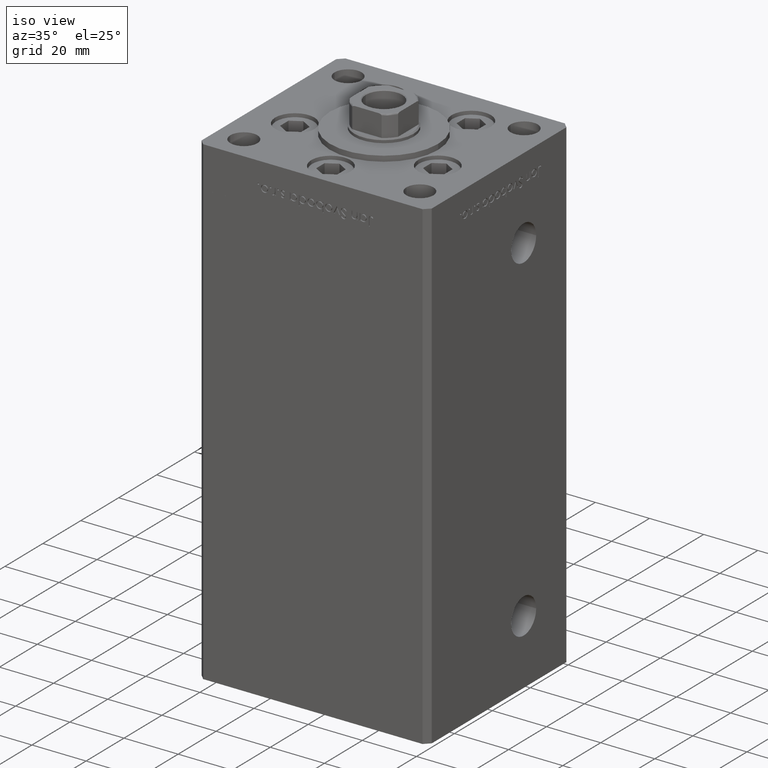
[diagram: clean part render]
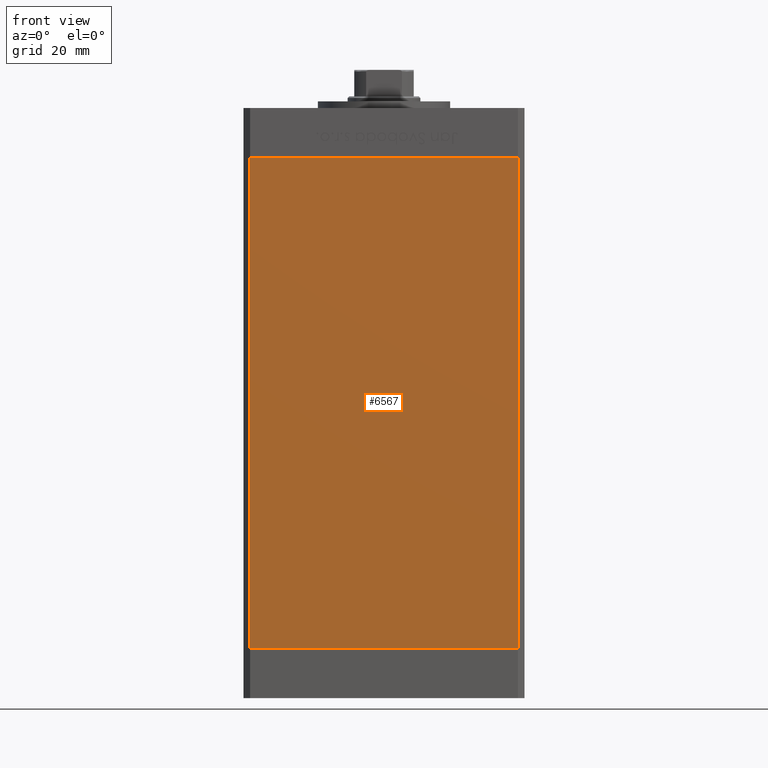
[diagram: tour spotlight — one face highlighted and labeled with its STEP entity id]
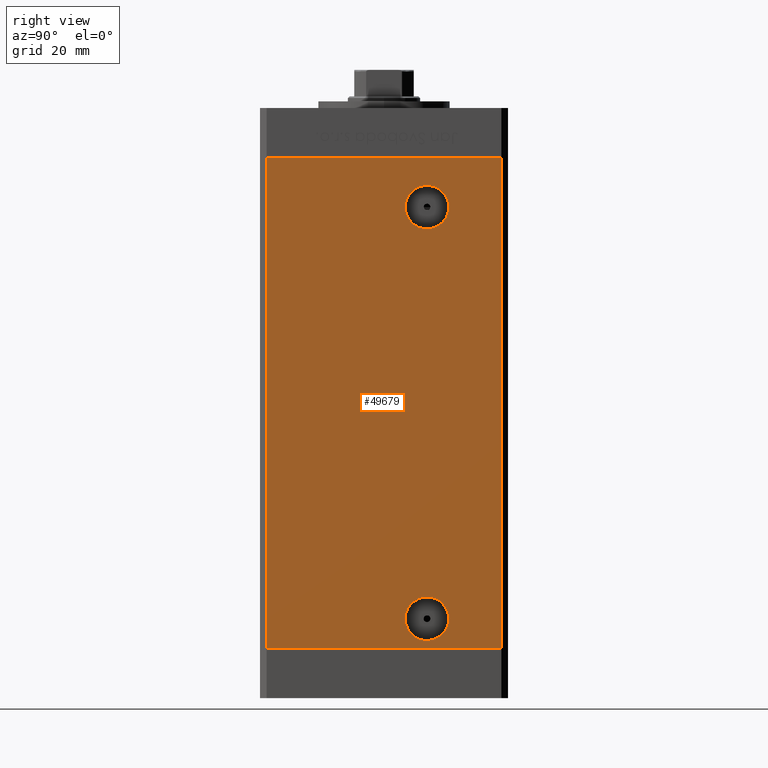
[diagram: tour spotlight — one face highlighted and labeled with its STEP entity id]
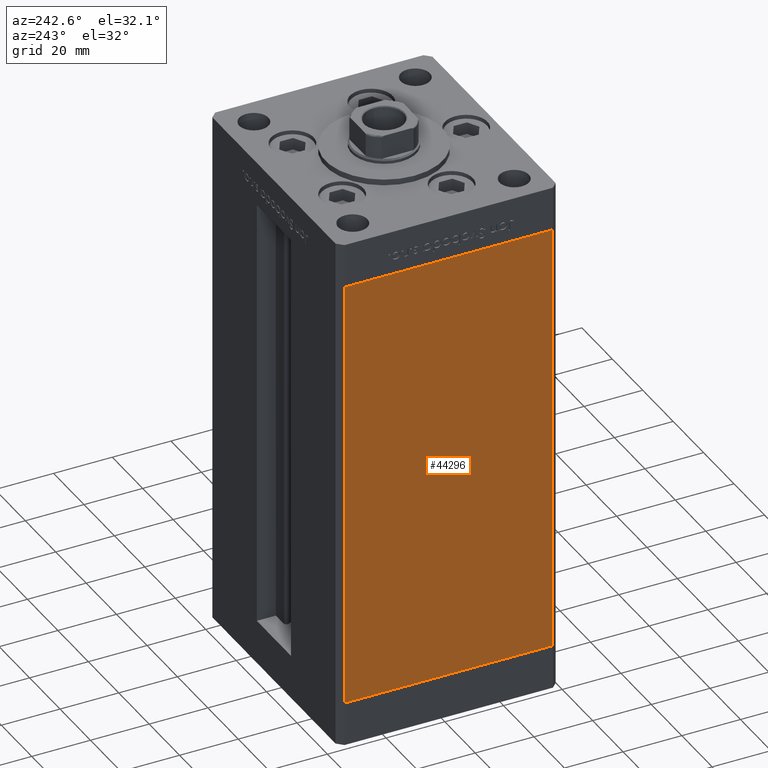
[diagram: tour spotlight — one face highlighted and labeled with its STEP entity id]
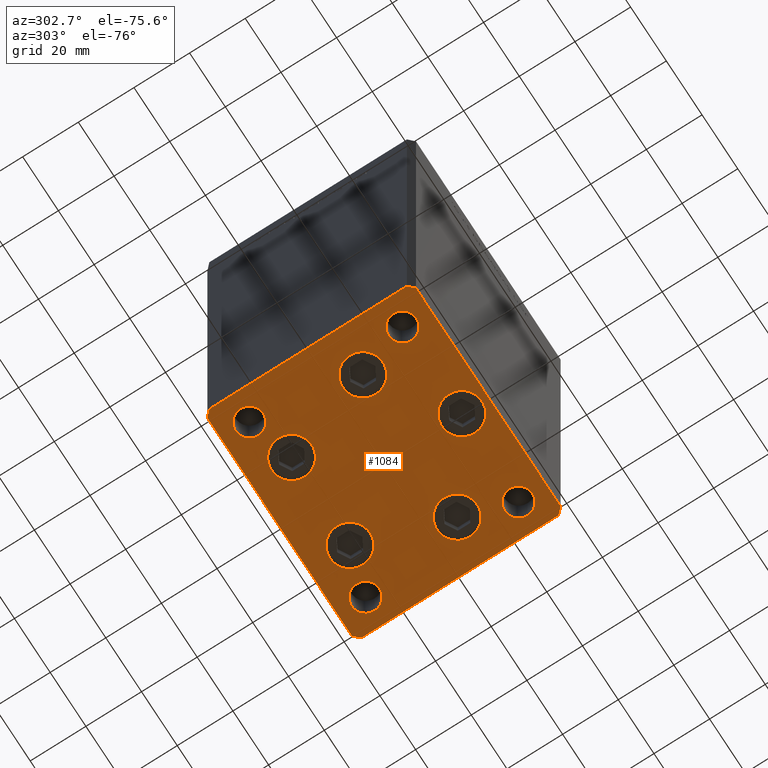
[diagram: tour spotlight — one face highlighted and labeled with its STEP entity id]
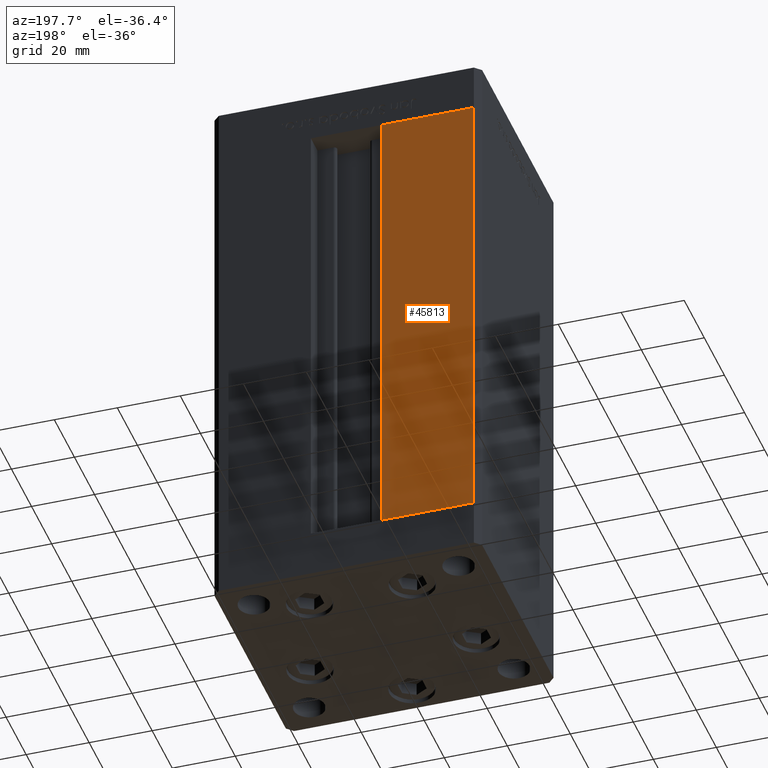
[diagram: tour spotlight — one face highlighted and labeled with its STEP entity id]
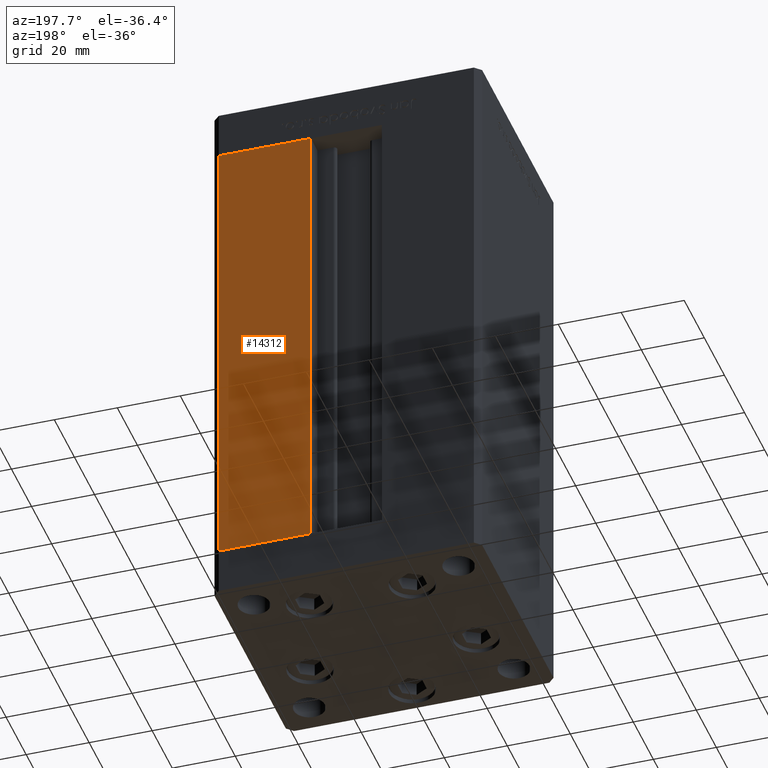
[diagram: tour spotlight — one face highlighted and labeled with its STEP entity id]
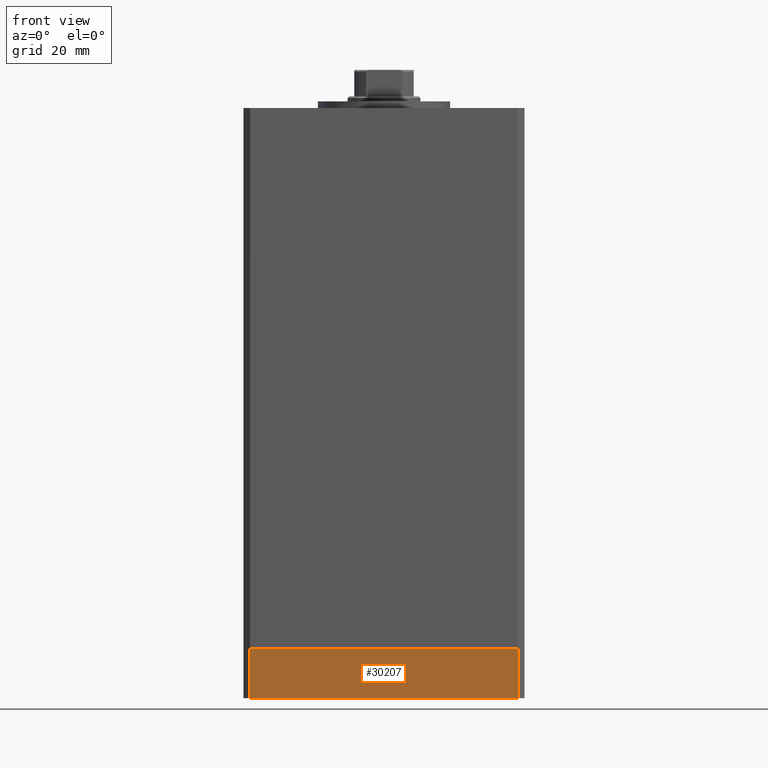
[diagram: tour spotlight — one face highlighted and labeled with its STEP entity id]
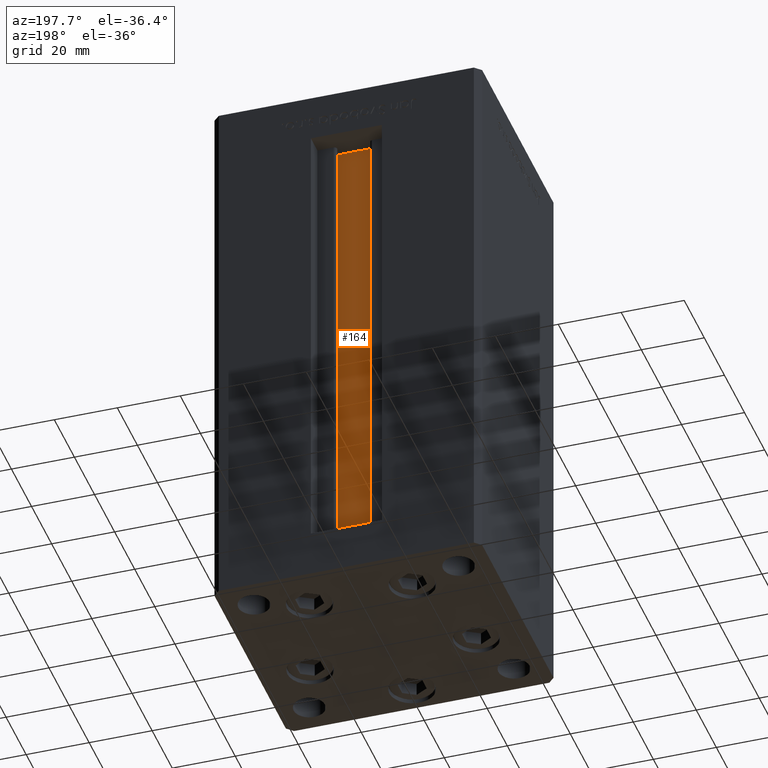
[diagram: tour spotlight — one face highlighted and labeled with its STEP entity id]
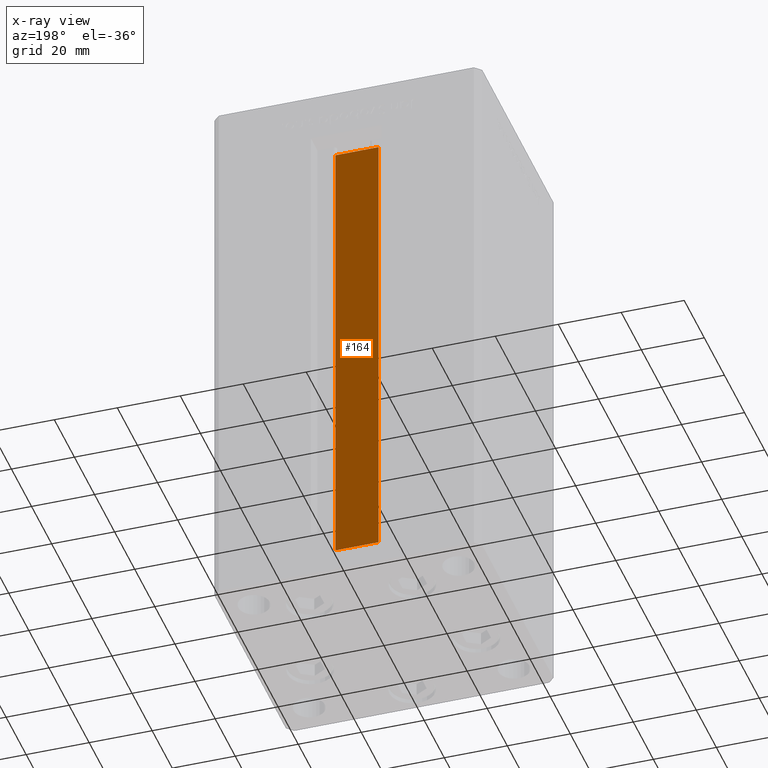
[diagram: x-ray of the same camera — body ghosted, this tour face saturated]
A machine part: a face-by-face anatomy tour. The part has 1183 B-rep faces; the first image is the clean iso view, then the 8 largest visible faces are spotlighted one at a time (largest first), each with its STEP entity span.

Face 1 — front view, entity #6567. In plain terms, the highlighted planar face has unit normal (0, 1, 0).
Definition (entity closure, byte-faithful):
#554 = FACE_OUTER_BOUND ( 'NONE', #30707, .T. ) ;
#743 = VERTEX_POINT ( 'NONE', #46597 ) ;
#2516 = LINE ( 'NONE', #32511, #34706 ) ;
#3361 = CARTESIAN_POINT ( 'NONE',  ( 40.49999999999998579, -37.50000000000000711, 0.000000000000000000 ) ) ;
#4184 = ORIENTED_EDGE ( 'NONE', *, *, #37182, .F. ) ;
#6567 = ADVANCED_FACE ( 'NONE', ( #554 ), #25093, .F. ) ;
#6984 = EDGE_CURVE ( 'NONE', #7990, #23725, #24181, .T. ) ;
#7174 = EDGE_CURVE ( 'NONE', #23725, #15042, #2516, .T. ) ;
#7990 = VERTEX_POINT ( 'NONE', #18030 ) ;
#15042 = VERTEX_POINT ( 'NONE', #3361 ) ;
#16134 = DIRECTION ( 'NONE',  ( 1.000000000000000000, 0.000000000000000000, 0.000000000000000000 ) ) ;
#17320 = ORIENTED_EDGE ( 'NONE', *, *, #7174, .T. ) ;
#18030 = CARTESIAN_POINT ( 'NONE',  ( -40.49999999999998579, -37.50000000000000711, 148.5000000000000000 ) ) ;
#19814 = DIRECTION ( 'NONE',  ( -0.000000000000000000, -0.000000000000000000, -1.000000000000000000 ) ) ;
#20321 = LINE ( 'NONE', #44094, #40150 ) ;
#20878 = DIRECTION ( 'NONE',  ( 0.000000000000000000, -0.000000000000000000, 1.000000000000000000 ) ) ;
#23725 = VERTEX_POINT ( 'NONE', #32270 ) ;
#24181 = LINE ( 'NONE', #36311, #43982 ) ;
#24422 = CARTESIAN_POINT ( 'NONE',  ( -40.49999999999998579, -37.50000000000000711, 148.5000000000000000 ) ) ;
#25093 = PLANE ( 'NONE',  #39806 ) ;
#30707 = EDGE_LOOP ( 'NONE', ( #17320, #4184, #37004, #35438 ) ) ;
#32270 = CARTESIAN_POINT ( 'NONE',  ( -40.49999999999998579, -37.50000000000000711, 0.000000000000000000 ) ) ;
#32511 = CARTESIAN_POINT ( 'NONE',  ( -40.49999999999998579, -37.50000000000000711, 0.000000000000000000 ) ) ;
#34706 = VECTOR ( 'NONE', #16134, 1000.000000000000000 ) ;
#35438 = ORIENTED_EDGE ( 'NONE', *, *, #6984, .T. ) ;
#36311 = CARTESIAN_POINT ( 'NONE',  ( -40.49999999999998579, -37.50000000000000711, 148.5000000000000000 ) ) ;
#37004 = ORIENTED_EDGE ( 'NONE', *, *, #43512, .F. ) ;
#37182 = EDGE_CURVE ( 'NONE', #743, #15042, #20321, .T. ) ;
#39806 = AXIS2_PLACEMENT_3D ( 'NONE', #41206, #45163, #20878 ) ;
#40150 = VECTOR ( 'NONE', #19814, 1000.000000000000000 ) ;
#40534 = DIRECTION ( 'NONE',  ( 1.000000000000000000, 0.000000000000000000, 0.000000000000000000 ) ) ;
#41206 = CARTESIAN_POINT ( 'NONE',  ( -40.49999999999998579, -37.50000000000000711, 148.5000000000000000 ) ) ;
#41986 = VECTOR ( 'NONE', #40534, 1000.000000000000000 ) ;
#43512 = EDGE_CURVE ( 'NONE', #7990, #743, #47921, .T. ) ;
#43982 = VECTOR ( 'NONE', #44763, 1000.000000000000000 ) ;
#44094 = CARTESIAN_POINT ( 'NONE',  ( 40.49999999999998579, -37.50000000000000711, 148.5000000000000000 ) ) ;
#44763 = DIRECTION ( 'NONE',  ( -0.000000000000000000, -0.000000000000000000, -1.000000000000000000 ) ) ;
#45163 = DIRECTION ( 'NONE',  ( 0.000000000000000000, 1.000000000000000000, 0.000000000000000000 ) ) ;
#46597 = CARTESIAN_POINT ( 'NONE',  ( 40.49999999999998579, -37.50000000000000711, 148.5000000000000000 ) ) ;
#47921 = LINE ( 'NONE', #24422, #41986 ) ;

Face 2 — right view, entity #49679. In plain terms, the highlighted planar face has unit normal (1, -0, 0).
Definition (entity closure, byte-faithful):
#598 = DIRECTION ( 'NONE',  ( 0.000000000000000000, 1.000000000000000000, 0.000000000000000000 ) ) ;
#983 = VERTEX_POINT ( 'NONE', #43689 ) ;
#1673 = DIRECTION ( 'NONE',  ( 1.000000000000000000, -2.931927001650941360E-16, 0.000000000000000000 ) ) ;
#2732 = FACE_OUTER_BOUND ( 'NONE', #41676, .T. ) ;
#2796 = LINE ( 'NONE', #22592, #17557 ) ;
#3632 = LINE ( 'NONE', #23176, #32087 ) ;
#4029 = ORIENTED_EDGE ( 'NONE', *, *, #36362, .F. ) ;
#4996 = LINE ( 'NONE', #46149, #39279 ) ;
#5351 = DIRECTION ( 'NONE',  ( -2.931927001650941360E-16, -1.000000000000000000, 0.000000000000000000 ) ) ;
#5759 = ORIENTED_EDGE ( 'NONE', *, *, #30039, .F. ) ;
#6292 = ORIENTED_EDGE ( 'NONE', *, *, #44570, .F. ) ;
#6313 = AXIS2_PLACEMENT_3D ( 'NONE', #9047, #36756, #598 ) ;
#7332 = DIRECTION ( 'NONE',  ( -0.000000000000000000, -0.000000000000000000, -1.000000000000000000 ) ) ;
#7663 = CARTESIAN_POINT ( 'NONE',  ( 42.49999999999998579, -35.50000000000000711, 0.000000000000000000 ) ) ;
#7687 = DIRECTION ( 'NONE',  ( 0.000000000000000000, 1.000000000000000000, 0.000000000000000000 ) ) ;
#8918 = VERTEX_POINT ( 'NONE', #48232 ) ;
#9047 = CARTESIAN_POINT ( 'NONE',  ( 42.49999999999999289, 13.00000000000000000, 133.5000000000000000 ) ) ;
#11861 = ORIENTED_EDGE ( 'NONE', *, *, #34322, .F. ) ;
#12040 = DIRECTION ( 'NONE',  ( 0.000000000000000000, 1.000000000000000000, 0.000000000000000000 ) ) ;
#12343 = CARTESIAN_POINT ( 'NONE',  ( 42.50000000000000711, 35.50000000000001421, 0.000000000000000000 ) ) ;
#13797 = AXIS2_PLACEMENT_3D ( 'NONE', #47160, #43227, #12040 ) ;
#13914 = CIRCLE ( 'NONE', #13797, 6.579999999999997407 ) ;
#14742 = CIRCLE ( 'NONE', #15574, 6.579999999999997407 ) ;
#15231 = CIRCLE ( 'NONE', #37155, 6.580000000000014282 ) ;
#15513 = VERTEX_POINT ( 'NONE', #37819 ) ;
#15574 = AXIS2_PLACEMENT_3D ( 'NONE', #23015, #24555, #7687 ) ;
#16572 = CARTESIAN_POINT ( 'NONE',  ( 42.49999999999999289, 6.420000000000000817, 9.000000000000007105 ) ) ;
#17343 = EDGE_CURVE ( 'NONE', #8918, #983, #37019, .T. ) ;
#17557 = VECTOR ( 'NONE', #31291, 1000.000000000000000 ) ;
#17583 = EDGE_CURVE ( 'NONE', #15513, #40117, #15231, .T. ) ;
#17999 = ORIENTED_EDGE ( 'NONE', *, *, #17343, .T. ) ;
#18682 = DIRECTION ( 'NONE',  ( -2.931927001650941360E-16, -1.000000000000000000, 0.000000000000000000 ) ) ;
#19236 = CARTESIAN_POINT ( 'NONE',  ( 42.49999999999999289, 19.57999999999999829, 9.000000000000007105 ) ) ;
#20807 = EDGE_LOOP ( 'NONE', ( #5759, #11861 ) ) ;
#22592 = CARTESIAN_POINT ( 'NONE',  ( 42.50000000000000711, 35.50000000000001421, 148.5000000000000000 ) ) ;
#23015 = CARTESIAN_POINT ( 'NONE',  ( 42.49999999999999289, 13.00000000000000000, 9.000000000000007105 ) ) ;
#23139 = CARTESIAN_POINT ( 'NONE',  ( 42.49999999999999289, 6.419999999999983942, 133.5000000000000000 ) ) ;
#23176 = CARTESIAN_POINT ( 'NONE',  ( 42.49999999999998579, -35.50000000000000711, 148.5000000000000000 ) ) ;
#24047 = CARTESIAN_POINT ( 'NONE',  ( 42.49999999999999289, 13.00000000000000000, 133.5000000000000000 ) ) ;
#24555 = DIRECTION ( 'NONE',  ( 1.000000000000000000, -2.275047181608927644E-16, 0.000000000000000000 ) ) ;
#28224 = CIRCLE ( 'NONE', #6313, 6.580000000000014282 ) ;
#30039 = EDGE_CURVE ( 'NONE', #33058, #40641, #13914, .T. ) ;
#30439 = DIRECTION ( 'NONE',  ( 2.931927001650941360E-16, 1.000000000000000000, 0.000000000000000000 ) ) ;
#31291 = DIRECTION ( 'NONE',  ( -0.000000000000000000, -0.000000000000000000, -1.000000000000000000 ) ) ;
#31967 = DIRECTION ( 'NONE',  ( 1.000000000000000000, -2.275047181608927644E-16, 0.000000000000000000 ) ) ;
#32087 = VECTOR ( 'NONE', #7332, 1000.000000000000000 ) ;
#32943 = VECTOR ( 'NONE', #5351, 1000.000000000000000 ) ;
#33058 = VERTEX_POINT ( 'NONE', #19236 ) ;
#33066 = AXIS2_PLACEMENT_3D ( 'NONE', #38364, #1673, #30439 ) ;
#33420 = EDGE_CURVE ( 'NONE', #40117, #15513, #28224, .T. ) ;
#33586 = CARTESIAN_POINT ( 'NONE',  ( 42.50000000000000711, 35.50000000000001421, 148.5000000000000000 ) ) ;
#34005 = ORIENTED_EDGE ( 'NONE', *, *, #17583, .F. ) ;
#34322 = EDGE_CURVE ( 'NONE', #40641, #33058, #14742, .T. ) ;
#35058 = ORIENTED_EDGE ( 'NONE', *, *, #47663, .T. ) ;
#35146 = DIRECTION ( 'NONE',  ( 0.000000000000000000, 1.000000000000000000, 0.000000000000000000 ) ) ;
#36299 = ORIENTED_EDGE ( 'NONE', *, *, #33420, .F. ) ;
#36362 = EDGE_CURVE ( 'NONE', #38192, #45134, #4996, .T. ) ;
#36756 = DIRECTION ( 'NONE',  ( 1.000000000000000000, -2.275047181608927644E-16, 0.000000000000000000 ) ) ;
#37019 = LINE ( 'NONE', #33586, #32943 ) ;
#37155 = AXIS2_PLACEMENT_3D ( 'NONE', #24047, #31967, #35146 ) ;
#37819 = CARTESIAN_POINT ( 'NONE',  ( 42.49999999999999289, 19.58000000000001251, 133.5000000000000000 ) ) ;
#38192 = VERTEX_POINT ( 'NONE', #12343 ) ;
#38364 = CARTESIAN_POINT ( 'NONE',  ( 42.50000000000000711, 35.50000000000001421, 148.5000000000000000 ) ) ;
#39279 = VECTOR ( 'NONE', #18682, 1000.000000000000000 ) ;
#40117 = VERTEX_POINT ( 'NONE', #23139 ) ;
#40641 = VERTEX_POINT ( 'NONE', #16572 ) ;
#41676 = EDGE_LOOP ( 'NONE', ( #4029, #6292, #17999, #35058 ) ) ;
#41811 = FACE_BOUND ( 'NONE', #42328, .T. ) ;
#42328 = EDGE_LOOP ( 'NONE', ( #34005, #36299 ) ) ;
#43227 = DIRECTION ( 'NONE',  ( 1.000000000000000000, -2.275047181608927644E-16, 0.000000000000000000 ) ) ;
#43689 = CARTESIAN_POINT ( 'NONE',  ( 42.49999999999998579, -35.50000000000000711, 148.5000000000000000 ) ) ;
#44570 = EDGE_CURVE ( 'NONE', #8918, #38192, #2796, .T. ) ;
#45134 = VERTEX_POINT ( 'NONE', #7663 ) ;
#46149 = CARTESIAN_POINT ( 'NONE',  ( 42.50000000000000711, 35.50000000000001421, 0.000000000000000000 ) ) ;
#47160 = CARTESIAN_POINT ( 'NONE',  ( 42.49999999999999289, 13.00000000000000000, 9.000000000000007105 ) ) ;
#47663 = EDGE_CURVE ( 'NONE', #983, #45134, #3632, .T. ) ;
#48232 = CARTESIAN_POINT ( 'NONE',  ( 42.50000000000000711, 35.50000000000001421, 148.5000000000000000 ) ) ;
#49679 = ADVANCED_FACE ( 'NONE', ( #41811, #49956, #2732 ), #50736, .T. ) ;
#49956 = FACE_BOUND ( 'NONE', #20807, .T. ) ;
#50736 = PLANE ( 'NONE',  #33066 ) ;

Face 3 — auxiliary view, entity #44296. In plain terms, the highlighted planar face has unit normal (1, 0, 0).
Definition (entity closure, byte-faithful):
#1622 = ORIENTED_EDGE ( 'NONE', *, *, #43456, .F. ) ;
#3709 = CARTESIAN_POINT ( 'NONE',  ( -42.50000000000000711, 35.50000000000001421, 0.000000000000000000 ) ) ;
#8279 = LINE ( 'NONE', #12488, #17983 ) ;
#8381 = LINE ( 'NONE', #36355, #50277 ) ;
#9835 = VERTEX_POINT ( 'NONE', #50909 ) ;
#10499 = EDGE_CURVE ( 'NONE', #15848, #9835, #8279, .T. ) ;
#11573 = VECTOR ( 'NONE', #44850, 1000.000000000000000 ) ;
#12488 = CARTESIAN_POINT ( 'NONE',  ( -42.50000000000000711, 35.50000000000001421, 148.5000000000000000 ) ) ;
#15848 = VERTEX_POINT ( 'NONE', #27114 ) ;
#16085 = FACE_OUTER_BOUND ( 'NONE', #29300, .T. ) ;
#16088 = LINE ( 'NONE', #3709, #11573 ) ;
#17983 = VECTOR ( 'NONE', #24374, 1000.000000000000000 ) ;
#19796 = CARTESIAN_POINT ( 'NONE',  ( -42.50000000000000711, 35.50000000000001421, 148.5000000000000000 ) ) ;
#21610 = ORIENTED_EDGE ( 'NONE', *, *, #39901, .F. ) ;
#24374 = DIRECTION ( 'NONE',  ( -0.000000000000000000, -0.000000000000000000, -1.000000000000000000 ) ) ;
#27114 = CARTESIAN_POINT ( 'NONE',  ( -42.50000000000000711, 35.50000000000001421, 148.5000000000000000 ) ) ;
#28523 = AXIS2_PLACEMENT_3D ( 'NONE', #19796, #51960, #31154 ) ;
#29300 = EDGE_LOOP ( 'NONE', ( #35799, #1622, #21610, #40551 ) ) ;
#31059 = LINE ( 'NONE', #34494, #41150 ) ;
#31154 = DIRECTION ( 'NONE',  ( -2.931927001650941360E-16, 1.000000000000000000, 0.000000000000000000 ) ) ;
#34494 = CARTESIAN_POINT ( 'NONE',  ( -42.49999999999998579, -35.50000000000000711, 148.5000000000000000 ) ) ;
#35799 = ORIENTED_EDGE ( 'NONE', *, *, #41314, .T. ) ;
#36355 = CARTESIAN_POINT ( 'NONE',  ( -42.50000000000000711, 35.50000000000001421, 148.5000000000000000 ) ) ;
#38460 = DIRECTION ( 'NONE',  ( -0.000000000000000000, -0.000000000000000000, -1.000000000000000000 ) ) ;
#39901 = EDGE_CURVE ( 'NONE', #15848, #46919, #8381, .T. ) ;
#40551 = ORIENTED_EDGE ( 'NONE', *, *, #10499, .T. ) ;
#41150 = VECTOR ( 'NONE', #38460, 1000.000000000000000 ) ;
#41280 = CARTESIAN_POINT ( 'NONE',  ( -42.49999999999998579, -35.50000000000000711, 148.5000000000000000 ) ) ;
#41314 = EDGE_CURVE ( 'NONE', #9835, #41836, #16088, .T. ) ;
#41836 = VERTEX_POINT ( 'NONE', #43895 ) ;
#43456 = EDGE_CURVE ( 'NONE', #46919, #41836, #31059, .T. ) ;
#43895 = CARTESIAN_POINT ( 'NONE',  ( -42.49999999999998579, -35.50000000000000711, 0.000000000000000000 ) ) ;
#44296 = ADVANCED_FACE ( 'NONE', ( #16085 ), #51190, .F. ) ;
#44802 = DIRECTION ( 'NONE',  ( 2.931927001650941360E-16, -1.000000000000000000, 0.000000000000000000 ) ) ;
#44850 = DIRECTION ( 'NONE',  ( 2.931927001650941360E-16, -1.000000000000000000, 0.000000000000000000 ) ) ;
#46919 = VERTEX_POINT ( 'NONE', #41280 ) ;
#50277 = VECTOR ( 'NONE', #44802, 1000.000000000000000 ) ;
#50909 = CARTESIAN_POINT ( 'NONE',  ( -42.50000000000000711, 35.50000000000001421, 0.000000000000000000 ) ) ;
#51190 = PLANE ( 'NONE',  #28523 ) ;
#51960 = DIRECTION ( 'NONE',  ( 1.000000000000000000, 2.931927001650941360E-16, -0.000000000000000000 ) ) ;

Face 4 — auxiliary view, entity #1084. In plain terms, the highlighted planar face has unit normal (0, 0, -1).
Definition (entity closure, byte-faithful):
#422 = CARTESIAN_POINT ( 'NONE',  ( 16.32291334290542295, 22.75000000000000000, 0.000000000000000000 ) ) ;
#640 = FACE_BOUND ( 'NONE', #30482, .T. ) ;
#667 = EDGE_CURVE ( 'NONE', #27866, #4997, #31214, .T. ) ;
#869 = EDGE_LOOP ( 'NONE', ( #9426, #15675 ) ) ;
#899 = FACE_BOUND ( 'NONE', #21798, .T. ) ;
#912 = ORIENTED_EDGE ( 'NONE', *, *, #21513, .T. ) ;
#969 = CARTESIAN_POINT ( 'NONE',  ( 42.49999999999992895, 35.50000000000000000, 0.000000000000000000 ) ) ;
#1084 = ADVANCED_FACE ( 'NONE', ( #32585, #48659, #899, #44718, #12772, #49190, #640, #43940, #20172, #36021 ), #48141, .T. ) ;
#1175 = VECTOR ( 'NONE', #41991, 1000.000000000000000 ) ;
#1435 = CIRCLE ( 'NONE', #8181, 7.249999999999999112 ) ;
#1686 = ORIENTED_EDGE ( 'NONE', *, *, #4479, .T. ) ;
#2723 = CARTESIAN_POINT ( 'NONE',  ( -9.072913342905431833, 22.74999999999999645, 0.000000000000000000 ) ) ;
#2774 = AXIS2_PLACEMENT_3D ( 'NONE', #17477, #4826, #48873 ) ;
#2835 = VERTEX_POINT ( 'NONE', #33451 ) ;
#2852 = AXIS2_PLACEMENT_3D ( 'NONE', #422, #48450, #29191 ) ;
#3227 = VECTOR ( 'NONE', #26487, 1000.000000000000000 ) ;
#3323 = ORIENTED_EDGE ( 'NONE', *, *, #5021, .F. ) ;
#3440 = CARTESIAN_POINT ( 'NONE',  ( -7.249999999999997335, -28.00000000000000000, 0.000000000000000000 ) ) ;
#3462 = CARTESIAN_POINT ( 'NONE',  ( 40.49999999999991473, 37.50000000000000711, 0.000000000000000000 ) ) ;
#3975 = ORIENTED_EDGE ( 'NONE', *, *, #44510, .T. ) ;
#4261 = CARTESIAN_POINT ( 'NONE',  ( -37.50000000000000711, -27.49999999999999645, 0.000000000000000000 ) ) ;
#4369 = ORIENTED_EDGE ( 'NONE', *, *, #50809, .F. ) ;
#4384 = VECTOR ( 'NONE', #26382, 1000.000000000000000 ) ;
#4479 = EDGE_CURVE ( 'NONE', #14300, #39158, #17791, .T. ) ;
#4617 = ORIENTED_EDGE ( 'NONE', *, *, #23361, .F. ) ;
#4826 = DIRECTION ( 'NONE',  ( -0.000000000000000000, 0.000000000000000000, 1.000000000000000000 ) ) ;
#4980 = DIRECTION ( 'NONE',  ( 0.000000000000000000, -0.000000000000000000, -1.000000000000000000 ) ) ;
#4997 = VERTEX_POINT ( 'NONE', #19036 ) ;
#5021 = EDGE_CURVE ( 'NONE', #40583, #38889, #30491, .T. ) ;
#5187 = CARTESIAN_POINT ( 'NONE',  ( 42.50000000000000711, -35.50000000000000000, 0.000000000000000000 ) ) ;
#6279 = CARTESIAN_POINT ( 'NONE',  ( 42.49999999999992895, 35.50000000000000000, 0.000000000000000000 ) ) ;
#6302 = ORIENTED_EDGE ( 'NONE', *, *, #32832, .T. ) ;
#6393 = AXIS2_PLACEMENT_3D ( 'NONE', #22213, #50954, #31173 ) ;
#6428 = VERTEX_POINT ( 'NONE', #30683 ) ;
#6765 = AXIS2_PLACEMENT_3D ( 'NONE', #51891, #14983, #47166 ) ;
#6800 = CARTESIAN_POINT ( 'NONE',  ( -27.50000000000000000, -27.49999999999999645, 0.000000000000000000 ) ) ;
#6899 = LINE ( 'NONE', #3462, #21381 ) ;
#7517 = EDGE_CURVE ( 'NONE', #30017, #21858, #50743, .T. ) ;
#7713 = DIRECTION ( 'NONE',  ( 1.000000000000000000, 0.000000000000000000, 0.000000000000000000 ) ) ;
#7748 = AXIS2_PLACEMENT_3D ( 'NONE', #12547, #24961, #40815 ) ;
#7860 = ORIENTED_EDGE ( 'NONE', *, *, #11810, .T. ) ;
#7896 = AXIS2_PLACEMENT_3D ( 'NONE', #29959, #25466, #46309 ) ;
#8181 = AXIS2_PLACEMENT_3D ( 'NONE', #37771, #49381, #49882 ) ;
#8849 = CARTESIAN_POINT ( 'NONE',  ( -26.39865316429776954, -9.333333333333337478, 0.000000000000000000 ) ) ;
#9334 = CIRCLE ( 'NONE', #30393, 7.249999999999999112 ) ;
#9426 = ORIENTED_EDGE ( 'NONE', *, *, #7517, .T. ) ;
#9616 = ORIENTED_EDGE ( 'NONE', *, *, #28357, .F. ) ;
#9670 = EDGE_CURVE ( 'NONE', #41818, #2835, #20471, .T. ) ;
#10013 = CARTESIAN_POINT ( 'NONE',  ( 3.429011037612589276E-15, -28.00000000000000000, 0.000000000000000000 ) ) ;
#10154 = AXIS2_PLACEMENT_3D ( 'NONE', #16738, #32843, #36269 ) ;
#10199 = ORIENTED_EDGE ( 'NONE', *, *, #15631, .T. ) ;
#10206 = EDGE_CURVE ( 'NONE', #27807, #48993, #13759, .T. ) ;
#10346 = CARTESIAN_POINT ( 'NONE',  ( -32.50000000000000000, 27.50000000000000355, 0.000000000000000000 ) ) ;
#10494 = DIRECTION ( 'NONE',  ( -0.7071067811865474617, 0.7071067811865474617, 0.000000000000000000 ) ) ;
#10607 = CIRCLE ( 'NONE', #6393, 4.999999999999997335 ) ;
#10989 = CARTESIAN_POINT ( 'NONE',  ( 32.50000000000000000, -27.49999999999999645, 0.000000000000000000 ) ) ;
#11140 = VERTEX_POINT ( 'NONE', #45802 ) ;
#11180 = CARTESIAN_POINT ( 'NONE',  ( -33.64865316429776954, -9.333333333333337478, 0.000000000000000000 ) ) ;
#11633 = CARTESIAN_POINT ( 'NONE',  ( 27.50000000000000355, 27.49999999999999645, 0.000000000000000000 ) ) ;
#11736 = DIRECTION ( 'NONE',  ( 1.000000000000000000, 0.000000000000000000, 0.000000000000000000 ) ) ;
#11810 = EDGE_CURVE ( 'NONE', #47582, #49774, #42522, .T. ) ;
#11914 = VECTOR ( 'NONE', #14435, 1000.000000000000114 ) ;
#12058 = AXIS2_PLACEMENT_3D ( 'NONE', #35773, #34986, #11736 ) ;
#12547 = CARTESIAN_POINT ( 'NONE',  ( 26.39865316429776954, -9.333333333333330373, 0.000000000000000000 ) ) ;
#12749 = CIRCLE ( 'NONE', #33852, 4.999999999999997335 ) ;
#12772 = FACE_BOUND ( 'NONE', #47308, .T. ) ;
#13086 = CARTESIAN_POINT ( 'NONE',  ( -32.50000000000000000, -27.49999999999999645, 0.000000000000000000 ) ) ;
#13432 = ORIENTED_EDGE ( 'NONE', *, *, #667, .T. ) ;
#13523 = VERTEX_POINT ( 'NONE', #41040 ) ;
#13716 = CIRCLE ( 'NONE', #2774, 5.000000000000000888 ) ;
#13759 = CIRCLE ( 'NONE', #7896, 7.249999999999999112 ) ;
#13807 = CARTESIAN_POINT ( 'NONE',  ( 37.50000000000000000, 27.49999999999999645, 0.000000000000000000 ) ) ;
#13921 = CARTESIAN_POINT ( 'NONE',  ( 40.50000000000000000, -37.50000000000000711, 0.000000000000000000 ) ) ;
#14137 = VERTEX_POINT ( 'NONE', #969 ) ;
#14151 = CARTESIAN_POINT ( 'NONE',  ( -19.14865316429777309, -9.333333333333335702, 0.000000000000000000 ) ) ;
#14300 = VERTEX_POINT ( 'NONE', #14151 ) ;
#14435 = DIRECTION ( 'NONE',  ( 0.7071067811865474617, 0.7071067811865474617, 0.000000000000000000 ) ) ;
#14592 = CARTESIAN_POINT ( 'NONE',  ( -40.49999999999999289, -37.50000000000002132, 0.000000000000000000 ) ) ;
#14759 = ORIENTED_EDGE ( 'NONE', *, *, #10206, .T. ) ;
#14983 = DIRECTION ( 'NONE',  ( 0.000000000000000000, -0.000000000000000000, -1.000000000000000000 ) ) ;
#15239 = DIRECTION ( 'NONE',  ( 0.000000000000000000, -0.000000000000000000, -1.000000000000000000 ) ) ;
#15631 = EDGE_CURVE ( 'NONE', #39158, #14300, #38831, .T. ) ;
#15675 = ORIENTED_EDGE ( 'NONE', *, *, #25386, .T. ) ;
#16194 = ORIENTED_EDGE ( 'NONE', *, *, #29316, .T. ) ;
#16446 = CIRCLE ( 'NONE', #2852, 7.249999999999999112 ) ;
#16738 = CARTESIAN_POINT ( 'NONE',  ( 0.000000000000000000, 0.000000000000000000, 0.000000000000000000 ) ) ;
#17090 = CARTESIAN_POINT ( 'NONE',  ( 40.49999999999991473, 37.50000000000000711, 0.000000000000000000 ) ) ;
#17365 = EDGE_LOOP ( 'NONE', ( #16194, #44280 ) ) ;
#17477 = CARTESIAN_POINT ( 'NONE',  ( -32.50000000000000000, 27.50000000000000355, 0.000000000000000000 ) ) ;
#17791 = CIRCLE ( 'NONE', #47289, 7.249999999999999112 ) ;
#17812 = EDGE_CURVE ( 'NONE', #31433, #11140, #12749, .T. ) ;
#18802 = DIRECTION ( 'NONE',  ( 0.000000000000000000, -0.000000000000000000, -1.000000000000000000 ) ) ;
#18883 = EDGE_CURVE ( 'NONE', #39669, #6428, #49786, .T. ) ;
#19036 = CARTESIAN_POINT ( 'NONE',  ( 7.250000000000003553, -28.00000000000000000, 0.000000000000000000 ) ) ;
#19215 = ORIENTED_EDGE ( 'NONE', *, *, #47671, .T. ) ;
#19568 = DIRECTION ( 'NONE',  ( 0.7071067811865463515, -0.7071067811865487940, 0.000000000000000000 ) ) ;
#19897 = EDGE_CURVE ( 'NONE', #29549, #23103, #42304, .T. ) ;
#20172 = FACE_OUTER_BOUND ( 'NONE', #23533, .T. ) ;
#20392 = EDGE_CURVE ( 'NONE', #49774, #13523, #35081, .T. ) ;
#20419 = ORIENTED_EDGE ( 'NONE', *, *, #19897, .T. ) ;
#20471 = CIRCLE ( 'NONE', #49946, 7.249999999999999112 ) ;
#20814 = DIRECTION ( 'NONE',  ( 1.000000000000000000, 0.000000000000000000, 0.000000000000000000 ) ) ;
#21283 = DIRECTION ( 'NONE',  ( -1.172770800660376741E-15, 1.000000000000000000, 0.000000000000000000 ) ) ;
#21362 = CARTESIAN_POINT ( 'NONE',  ( -37.50000000000000711, 27.50000000000000355, 0.000000000000000000 ) ) ;
#21381 = VECTOR ( 'NONE', #27476, 1000.000000000000000 ) ;
#21513 = EDGE_CURVE ( 'NONE', #14137, #40008, #42702, .T. ) ;
#21798 = EDGE_LOOP ( 'NONE', ( #20419, #19215 ) ) ;
#21858 = VERTEX_POINT ( 'NONE', #4261 ) ;
#22213 = CARTESIAN_POINT ( 'NONE',  ( 32.50000000000000000, -27.49999999999999645, 0.000000000000000000 ) ) ;
#22910 = CARTESIAN_POINT ( 'NONE',  ( 33.64865316429776954, -9.333333333333328596, 0.000000000000000000 ) ) ;
#22934 = CARTESIAN_POINT ( 'NONE',  ( 40.50000000000000000, -37.50000000000000711, 0.000000000000000000 ) ) ;
#22968 = AXIS2_PLACEMENT_3D ( 'NONE', #24775, #4980, #20814 ) ;
#23046 = CIRCLE ( 'NONE', #12058, 4.999999999999997335 ) ;
#23103 = VERTEX_POINT ( 'NONE', #22910 ) ;
#23361 = EDGE_CURVE ( 'NONE', #46967, #45809, #23046, .T. ) ;
#23533 = EDGE_LOOP ( 'NONE', ( #6302, #29718, #42631, #3975, #912, #32162, #7860, #33347 ) ) ;
#23790 = LINE ( 'NONE', #39639, #38289 ) ;
#23900 = AXIS2_PLACEMENT_3D ( 'NONE', #13086, #36836, #29188 ) ;
#24237 = ORIENTED_EDGE ( 'NONE', *, *, #37107, .T. ) ;
#24532 = ORIENTED_EDGE ( 'NONE', *, *, #41136, .T. ) ;
#24751 = EDGE_CURVE ( 'NONE', #40008, #47582, #6899, .T. ) ;
#24775 = CARTESIAN_POINT ( 'NONE',  ( -32.50000000000000000, -27.49999999999999645, 0.000000000000000000 ) ) ;
#24961 = DIRECTION ( 'NONE',  ( 0.000000000000000000, -0.000000000000000000, -1.000000000000000000 ) ) ;
#25019 = DIRECTION ( 'NONE',  ( 1.000000000000000000, 0.000000000000000000, 0.000000000000000000 ) ) ;
#25235 = LINE ( 'NONE', #5187, #31056 ) ;
#25386 = EDGE_CURVE ( 'NONE', #21858, #30017, #45827, .T. ) ;
#25466 = DIRECTION ( 'NONE',  ( 0.000000000000000000, -0.000000000000000000, -1.000000000000000000 ) ) ;
#26382 = DIRECTION ( 'NONE',  ( 9.773090005503140331E-17, -1.000000000000000000, 0.000000000000000000 ) ) ;
#26487 = DIRECTION ( 'NONE',  ( 1.000000000000000000, 1.713307136767217096E-16, 0.000000000000000000 ) ) ;
#26513 = CIRCLE ( 'NONE', #37466, 4.999999999999997335 ) ;
#27179 = VECTOR ( 'NONE', #10494, 1000.000000000000114 ) ;
#27220 = EDGE_LOOP ( 'NONE', ( #3323, #4369 ) ) ;
#27271 = CARTESIAN_POINT ( 'NONE',  ( 23.57291334290542295, 22.75000000000000000, 0.000000000000000000 ) ) ;
#27322 = ORIENTED_EDGE ( 'NONE', *, *, #33781, .T. ) ;
#27476 = DIRECTION ( 'NONE',  ( -1.000000000000000000, -3.426614273534436165E-16, 0.000000000000000000 ) ) ;
#27807 = VERTEX_POINT ( 'NONE', #50150 ) ;
#27850 = DIRECTION ( 'NONE',  ( 1.000000000000000000, 0.000000000000000000, 0.000000000000000000 ) ) ;
#27866 = VERTEX_POINT ( 'NONE', #3440 ) ;
#28357 = EDGE_CURVE ( 'NONE', #45809, #46967, #26513, .T. ) ;
#28632 = DIRECTION ( 'NONE',  ( 0.000000000000000000, -0.000000000000000000, -1.000000000000000000 ) ) ;
#29188 = DIRECTION ( 'NONE',  ( 1.000000000000000000, 0.000000000000000000, 0.000000000000000000 ) ) ;
#29191 = DIRECTION ( 'NONE',  ( 1.000000000000000000, 0.000000000000000000, 0.000000000000000000 ) ) ;
#29316 = EDGE_CURVE ( 'NONE', #2835, #41818, #16446, .T. ) ;
#29549 = VERTEX_POINT ( 'NONE', #34969 ) ;
#29718 = ORIENTED_EDGE ( 'NONE', *, *, #43865, .T. ) ;
#29959 = CARTESIAN_POINT ( 'NONE',  ( -16.32291334290543006, 22.74999999999999645, 0.000000000000000000 ) ) ;
#30017 = VERTEX_POINT ( 'NONE', #6800 ) ;
#30393 = AXIS2_PLACEMENT_3D ( 'NONE', #47692, #15239, #30567 ) ;
#30482 = EDGE_LOOP ( 'NONE', ( #24237, #35571 ) ) ;
#30491 = CIRCLE ( 'NONE', #33851, 5.000000000000000888 ) ;
#30567 = DIRECTION ( 'NONE',  ( 1.000000000000000000, 0.000000000000000000, 0.000000000000000000 ) ) ;
#30607 = DIRECTION ( 'NONE',  ( 1.000000000000000000, 0.000000000000000000, 0.000000000000000000 ) ) ;
#30683 = CARTESIAN_POINT ( 'NONE',  ( 42.50000000000000711, -35.50000000000000000, 0.000000000000000000 ) ) ;
#31056 = VECTOR ( 'NONE', #21283, 1000.000000000000000 ) ;
#31173 = DIRECTION ( 'NONE',  ( 1.000000000000000000, 0.000000000000000000, 0.000000000000000000 ) ) ;
#31209 = CARTESIAN_POINT ( 'NONE',  ( -26.39865316429776954, -9.333333333333337478, 0.000000000000000000 ) ) ;
#31214 = CIRCLE ( 'NONE', #6765, 7.250000000000000000 ) ;
#31390 = CARTESIAN_POINT ( 'NONE',  ( -27.50000000000000000, 27.50000000000000355, 0.000000000000000000 ) ) ;
#31433 = VERTEX_POINT ( 'NONE', #35203 ) ;
#31594 = AXIS2_PLACEMENT_3D ( 'NONE', #10013, #41960, #37982 ) ;
#32162 = ORIENTED_EDGE ( 'NONE', *, *, #24751, .T. ) ;
#32430 = CARTESIAN_POINT ( 'NONE',  ( 32.50000000000000000, 27.49999999999999645, 0.000000000000000000 ) ) ;
#32585 = FACE_BOUND ( 'NONE', #50414, .T. ) ;
#32725 = VERTEX_POINT ( 'NONE', #38856 ) ;
#32832 = EDGE_CURVE ( 'NONE', #13523, #32725, #23790, .T. ) ;
#32843 = DIRECTION ( 'NONE',  ( -0.000000000000000000, 0.000000000000000000, 1.000000000000000000 ) ) ;
#33347 = ORIENTED_EDGE ( 'NONE', *, *, #20392, .T. ) ;
#33451 = CARTESIAN_POINT ( 'NONE',  ( 9.072913342905424727, 22.75000000000000000, 0.000000000000000000 ) ) ;
#33781 = EDGE_CURVE ( 'NONE', #4997, #27866, #34148, .T. ) ;
#33851 = AXIS2_PLACEMENT_3D ( 'NONE', #10346, #34613, #51214 ) ;
#33852 = AXIS2_PLACEMENT_3D ( 'NONE', #10989, #38980, #39247 ) ;
#34148 = CIRCLE ( 'NONE', #31594, 7.250000000000000000 ) ;
#34578 = CARTESIAN_POINT ( 'NONE',  ( -40.50000000000000711, 37.49999999999997868, 0.000000000000000000 ) ) ;
#34613 = DIRECTION ( 'NONE',  ( -0.000000000000000000, 0.000000000000000000, 1.000000000000000000 ) ) ;
#34969 = CARTESIAN_POINT ( 'NONE',  ( 19.14865316429777309, -9.333333333333330373, 0.000000000000000000 ) ) ;
#34986 = DIRECTION ( 'NONE',  ( -0.000000000000000000, 0.000000000000000000, 1.000000000000000000 ) ) ;
#35081 = LINE ( 'NONE', #39316, #4384 ) ;
#35203 = CARTESIAN_POINT ( 'NONE',  ( 27.50000000000000355, -27.49999999999999645, 0.000000000000000000 ) ) ;
#35571 = ORIENTED_EDGE ( 'NONE', *, *, #17812, .T. ) ;
#35773 = CARTESIAN_POINT ( 'NONE',  ( 32.50000000000000000, 27.49999999999999645, 0.000000000000000000 ) ) ;
#36021 = FACE_BOUND ( 'NONE', #869, .T. ) ;
#36269 = DIRECTION ( 'NONE',  ( 1.000000000000000000, 0.000000000000000000, 0.000000000000000000 ) ) ;
#36826 = EDGE_LOOP ( 'NONE', ( #4617, #9616 ) ) ;
#36836 = DIRECTION ( 'NONE',  ( 0.000000000000000000, -0.000000000000000000, -1.000000000000000000 ) ) ;
#37107 = EDGE_CURVE ( 'NONE', #11140, #31433, #10607, .T. ) ;
#37466 = AXIS2_PLACEMENT_3D ( 'NONE', #32430, #44822, #25019 ) ;
#37771 = CARTESIAN_POINT ( 'NONE',  ( -16.32291334290543006, 22.74999999999999645, 0.000000000000000000 ) ) ;
#37982 = DIRECTION ( 'NONE',  ( 1.000000000000000000, 0.000000000000000000, 0.000000000000000000 ) ) ;
#38289 = VECTOR ( 'NONE', #19568, 1000.000000000000000 ) ;
#38831 = CIRCLE ( 'NONE', #40522, 7.249999999999999112 ) ;
#38856 = CARTESIAN_POINT ( 'NONE',  ( -40.49999999999999289, -37.50000000000002132, 0.000000000000000000 ) ) ;
#38889 = VERTEX_POINT ( 'NONE', #21362 ) ;
#38980 = DIRECTION ( 'NONE',  ( 0.000000000000000000, -0.000000000000000000, -1.000000000000000000 ) ) ;
#39158 = VERTEX_POINT ( 'NONE', #11180 ) ;
#39247 = DIRECTION ( 'NONE',  ( 1.000000000000000000, 0.000000000000000000, 0.000000000000000000 ) ) ;
#39316 = CARTESIAN_POINT ( 'NONE',  ( -42.50000000000000711, 35.49999999999997158, 0.000000000000000000 ) ) ;
#39639 = CARTESIAN_POINT ( 'NONE',  ( -42.50000000000000000, -35.50000000000000711, 0.000000000000000000 ) ) ;
#39669 = VERTEX_POINT ( 'NONE', #22934 ) ;
#40008 = VERTEX_POINT ( 'NONE', #17090 ) ;
#40522 = AXIS2_PLACEMENT_3D ( 'NONE', #31209, #18802, #7713 ) ;
#40583 = VERTEX_POINT ( 'NONE', #31390 ) ;
#40815 = DIRECTION ( 'NONE',  ( 1.000000000000000000, 0.000000000000000000, 0.000000000000000000 ) ) ;
#41040 = CARTESIAN_POINT ( 'NONE',  ( -42.50000000000000000, -35.50000000000000711, 0.000000000000000000 ) ) ;
#41136 = EDGE_CURVE ( 'NONE', #48993, #27807, #1435, .T. ) ;
#41818 = VERTEX_POINT ( 'NONE', #27271 ) ;
#41960 = DIRECTION ( 'NONE',  ( 0.000000000000000000, -0.000000000000000000, -1.000000000000000000 ) ) ;
#41991 = DIRECTION ( 'NONE',  ( -0.7071067811865463515, -0.7071067811865487940, 0.000000000000000000 ) ) ;
#42304 = CIRCLE ( 'NONE', #7748, 7.249999999999999112 ) ;
#42522 = LINE ( 'NONE', #34578, #1175 ) ;
#42631 = ORIENTED_EDGE ( 'NONE', *, *, #18883, .T. ) ;
#42702 = LINE ( 'NONE', #6279, #27179 ) ;
#43865 = EDGE_CURVE ( 'NONE', #32725, #39669, #50998, .T. ) ;
#43940 = FACE_BOUND ( 'NONE', #27220, .T. ) ;
#44280 = ORIENTED_EDGE ( 'NONE', *, *, #9670, .T. ) ;
#44510 = EDGE_CURVE ( 'NONE', #6428, #14137, #25235, .T. ) ;
#44718 = FACE_BOUND ( 'NONE', #45359, .T. ) ;
#44822 = DIRECTION ( 'NONE',  ( -0.000000000000000000, 0.000000000000000000, 1.000000000000000000 ) ) ;
#45359 = EDGE_LOOP ( 'NONE', ( #13432, #27322 ) ) ;
#45802 = CARTESIAN_POINT ( 'NONE',  ( 37.50000000000000000, -27.49999999999999645, 0.000000000000000000 ) ) ;
#45809 = VERTEX_POINT ( 'NONE', #11633 ) ;
#45827 = CIRCLE ( 'NONE', #23900, 5.000000000000000888 ) ;
#46177 = DIRECTION ( 'NONE',  ( 0.000000000000000000, -0.000000000000000000, -1.000000000000000000 ) ) ;
#46275 = CARTESIAN_POINT ( 'NONE',  ( -42.50000000000000711, 35.49999999999997158, 0.000000000000000000 ) ) ;
#46309 = DIRECTION ( 'NONE',  ( 1.000000000000000000, 0.000000000000000000, 0.000000000000000000 ) ) ;
#46398 = CARTESIAN_POINT ( 'NONE',  ( -40.50000000000000711, 37.49999999999997868, 0.000000000000000000 ) ) ;
#46438 = CARTESIAN_POINT ( 'NONE',  ( 16.32291334290542295, 22.75000000000000000, 0.000000000000000000 ) ) ;
#46967 = VERTEX_POINT ( 'NONE', #13807 ) ;
#47166 = DIRECTION ( 'NONE',  ( 1.000000000000000000, 0.000000000000000000, 0.000000000000000000 ) ) ;
#47289 = AXIS2_PLACEMENT_3D ( 'NONE', #8849, #28632, #27850 ) ;
#47308 = EDGE_LOOP ( 'NONE', ( #10199, #1686 ) ) ;
#47582 = VERTEX_POINT ( 'NONE', #46398 ) ;
#47671 = EDGE_CURVE ( 'NONE', #23103, #29549, #9334, .T. ) ;
#47692 = CARTESIAN_POINT ( 'NONE',  ( 26.39865316429776954, -9.333333333333330373, 0.000000000000000000 ) ) ;
#48141 = PLANE ( 'NONE',  #10154 ) ;
#48450 = DIRECTION ( 'NONE',  ( 0.000000000000000000, -0.000000000000000000, -1.000000000000000000 ) ) ;
#48659 = FACE_BOUND ( 'NONE', #17365, .T. ) ;
#48873 = DIRECTION ( 'NONE',  ( 1.000000000000000000, 0.000000000000000000, 0.000000000000000000 ) ) ;
#48993 = VERTEX_POINT ( 'NONE', #2723 ) ;
#49190 = FACE_BOUND ( 'NONE', #36826, .T. ) ;
#49381 = DIRECTION ( 'NONE',  ( 0.000000000000000000, -0.000000000000000000, -1.000000000000000000 ) ) ;
#49774 = VERTEX_POINT ( 'NONE', #46275 ) ;
#49786 = LINE ( 'NONE', #13921, #11914 ) ;
#49882 = DIRECTION ( 'NONE',  ( 1.000000000000000000, 0.000000000000000000, 0.000000000000000000 ) ) ;
#49946 = AXIS2_PLACEMENT_3D ( 'NONE', #46438, #46177, #30607 ) ;
#50150 = CARTESIAN_POINT ( 'NONE',  ( -23.57291334290543006, 22.74999999999999645, 0.000000000000000000 ) ) ;
#50414 = EDGE_LOOP ( 'NONE', ( #14759, #24532 ) ) ;
#50743 = CIRCLE ( 'NONE', #22968, 5.000000000000000888 ) ;
#50809 = EDGE_CURVE ( 'NONE', #38889, #40583, #13716, .T. ) ;
#50954 = DIRECTION ( 'NONE',  ( 0.000000000000000000, -0.000000000000000000, -1.000000000000000000 ) ) ;
#50998 = LINE ( 'NONE', #14592, #3227 ) ;
#51214 = DIRECTION ( 'NONE',  ( 1.000000000000000000, 0.000000000000000000, 0.000000000000000000 ) ) ;
#51891 = CARTESIAN_POINT ( 'NONE',  ( 3.429011037612589276E-15, -28.00000000000000000, 0.000000000000000000 ) ) ;

Face 5 — auxiliary view, entity #45813. In plain terms, the highlighted planar face has unit normal (-0, -1, 0).
Definition (entity closure, byte-faithful):
#614 = VERTEX_POINT ( 'NONE', #11289 ) ;
#1148 = EDGE_CURVE ( 'NONE', #48858, #614, #1158, .T. ) ;
#1158 = LINE ( 'NONE', #41809, #39627 ) ;
#1870 = ORIENTED_EDGE ( 'NONE', *, *, #1148, .F. ) ;
#3212 = DIRECTION ( 'NONE',  ( 1.000000000000000000, -2.372271420139223331E-16, 0.000000000000000000 ) ) ;
#4166 = EDGE_CURVE ( 'NONE', #48858, #48561, #7414, .T. ) ;
#4172 = DIRECTION ( 'NONE',  ( 1.000000000000000000, 0.000000000000000000, 0.000000000000000000 ) ) ;
#4856 = EDGE_LOOP ( 'NONE', ( #49529, #1870, #6029, #21422 ) ) ;
#4979 = AXIS2_PLACEMENT_3D ( 'NONE', #36424, #24039, #3212 ) ;
#5495 = EDGE_CURVE ( 'NONE', #10284, #614, #40329, .T. ) ;
#6029 = ORIENTED_EDGE ( 'NONE', *, *, #4166, .T. ) ;
#7414 = LINE ( 'NONE', #35647, #32110 ) ;
#8894 = CARTESIAN_POINT ( 'NONE',  ( -40.50000000000000000, 37.50000000000000711, 0.000000000000000000 ) ) ;
#10284 = VERTEX_POINT ( 'NONE', #15419 ) ;
#11289 = CARTESIAN_POINT ( 'NONE',  ( -11.25000000000000000, 37.50000000000000000, 148.5000000000000000 ) ) ;
#11981 = VECTOR ( 'NONE', #50457, 1000.000000000000000 ) ;
#15419 = CARTESIAN_POINT ( 'NONE',  ( -40.50000000000000000, 37.50000000000000711, 148.5000000000000000 ) ) ;
#19752 = CARTESIAN_POINT ( 'NONE',  ( -11.25000000000000000, 37.50000000000000000, 148.5000000000000000 ) ) ;
#21422 = ORIENTED_EDGE ( 'NONE', *, *, #48675, .F. ) ;
#23760 = DIRECTION ( 'NONE',  ( -1.000000000000000000, 2.372271420139223331E-16, 0.000000000000000000 ) ) ;
#24039 = DIRECTION ( 'NONE',  ( -2.372271420139223331E-16, -1.000000000000000000, 0.000000000000000000 ) ) ;
#32110 = VECTOR ( 'NONE', #23760, 1000.000000000000000 ) ;
#32479 = FACE_OUTER_BOUND ( 'NONE', #4856, .T. ) ;
#35647 = CARTESIAN_POINT ( 'NONE',  ( -11.25000000000000000, 37.50000000000000000, 0.000000000000000000 ) ) ;
#36424 = CARTESIAN_POINT ( 'NONE',  ( -11.25000000000000000, 37.50000000000000000, 148.5000000000000000 ) ) ;
#37579 = DIRECTION ( 'NONE',  ( -0.000000000000000000, -0.000000000000000000, 1.000000000000000000 ) ) ;
#39627 = VECTOR ( 'NONE', #37579, 1000.000000000000000 ) ;
#40143 = PLANE ( 'NONE',  #4979 ) ;
#40329 = LINE ( 'NONE', #19752, #40596 ) ;
#40596 = VECTOR ( 'NONE', #4172, 1000.000000000000000 ) ;
#41534 = LINE ( 'NONE', #50198, #11981 ) ;
#41809 = CARTESIAN_POINT ( 'NONE',  ( -11.25000000000000000, 37.50000000000000000, 0.000000000000000000 ) ) ;
#44462 = CARTESIAN_POINT ( 'NONE',  ( -11.25000000000000000, 37.50000000000000000, 0.000000000000000000 ) ) ;
#45813 = ADVANCED_FACE ( 'NONE', ( #32479 ), #40143, .F. ) ;
#48561 = VERTEX_POINT ( 'NONE', #8894 ) ;
#48675 = EDGE_CURVE ( 'NONE', #10284, #48561, #41534, .T. ) ;
#48858 = VERTEX_POINT ( 'NONE', #44462 ) ;
#49529 = ORIENTED_EDGE ( 'NONE', *, *, #5495, .T. ) ;
#50198 = CARTESIAN_POINT ( 'NONE',  ( -40.50000000000000000, 37.50000000000000711, 148.5000000000000000 ) ) ;
#50457 = DIRECTION ( 'NONE',  ( -0.000000000000000000, -0.000000000000000000, -1.000000000000000000 ) ) ;

Face 6 — auxiliary view, entity #14312. In plain terms, the highlighted planar face has unit normal (-0, -1, 0).
Definition (entity closure, byte-faithful):
#214 = VERTEX_POINT ( 'NONE', #15198 ) ;
#1491 = DIRECTION ( 'NONE',  ( -2.372271420139223331E-16, -1.000000000000000000, 0.000000000000000000 ) ) ;
#1846 = CARTESIAN_POINT ( 'NONE',  ( -11.25000000000000000, 37.50000000000000000, 0.000000000000000000 ) ) ;
#4993 = DIRECTION ( 'NONE',  ( 1.000000000000000000, 0.000000000000000000, 0.000000000000000000 ) ) ;
#5075 = AXIS2_PLACEMENT_3D ( 'NONE', #26567, #1491, #13894 ) ;
#8030 = DIRECTION ( 'NONE',  ( -0.000000000000000000, -0.000000000000000000, -1.000000000000000000 ) ) ;
#8811 = VERTEX_POINT ( 'NONE', #29814 ) ;
#8956 = CARTESIAN_POINT ( 'NONE',  ( -11.25000000000000000, 37.50000000000000000, 148.5000000000000000 ) ) ;
#11408 = EDGE_CURVE ( 'NONE', #8811, #214, #16196, .T. ) ;
#11540 = ORIENTED_EDGE ( 'NONE', *, *, #11408, .T. ) ;
#11859 = CARTESIAN_POINT ( 'NONE',  ( 11.24999999999999289, 37.50000000000000000, 148.5000000000000000 ) ) ;
#13511 = ORIENTED_EDGE ( 'NONE', *, *, #40244, .T. ) ;
#13894 = DIRECTION ( 'NONE',  ( 1.000000000000000000, -2.372271420139223331E-16, 0.000000000000000000 ) ) ;
#14312 = ADVANCED_FACE ( 'NONE', ( #30516 ), #38176, .F. ) ;
#14749 = ORIENTED_EDGE ( 'NONE', *, *, #17052, .T. ) ;
#15198 = CARTESIAN_POINT ( 'NONE',  ( 40.50000000000000000, 37.50000000000000711, 0.000000000000000000 ) ) ;
#16196 = LINE ( 'NONE', #36785, #33212 ) ;
#17052 = EDGE_CURVE ( 'NONE', #47511, #8811, #41159, .T. ) ;
#18774 = ORIENTED_EDGE ( 'NONE', *, *, #32962, .T. ) ;
#19942 = LINE ( 'NONE', #44744, #32632 ) ;
#26567 = CARTESIAN_POINT ( 'NONE',  ( -11.25000000000000000, 37.50000000000000000, 148.5000000000000000 ) ) ;
#27453 = VERTEX_POINT ( 'NONE', #42117 ) ;
#28720 = VECTOR ( 'NONE', #4993, 1000.000000000000000 ) ;
#29814 = CARTESIAN_POINT ( 'NONE',  ( 40.50000000000000000, 37.50000000000000711, 148.5000000000000000 ) ) ;
#30344 = LINE ( 'NONE', #1846, #50929 ) ;
#30516 = FACE_OUTER_BOUND ( 'NONE', #39194, .T. ) ;
#32611 = DIRECTION ( 'NONE',  ( -0.000000000000000000, -0.000000000000000000, 1.000000000000000000 ) ) ;
#32632 = VECTOR ( 'NONE', #32611, 1000.000000000000000 ) ;
#32962 = EDGE_CURVE ( 'NONE', #214, #27453, #30344, .T. ) ;
#33212 = VECTOR ( 'NONE', #8030, 1000.000000000000000 ) ;
#36785 = CARTESIAN_POINT ( 'NONE',  ( 40.50000000000000000, 37.50000000000000711, 148.5000000000000000 ) ) ;
#38176 = PLANE ( 'NONE',  #5075 ) ;
#39194 = EDGE_LOOP ( 'NONE', ( #18774, #13511, #14749, #11540 ) ) ;
#40244 = EDGE_CURVE ( 'NONE', #27453, #47511, #19942, .T. ) ;
#41159 = LINE ( 'NONE', #8956, #28720 ) ;
#42117 = CARTESIAN_POINT ( 'NONE',  ( 11.25000000000000000, 37.50000000000000000, 0.000000000000000000 ) ) ;
#42506 = DIRECTION ( 'NONE',  ( -1.000000000000000000, 2.372271420139223331E-16, 0.000000000000000000 ) ) ;
#44744 = CARTESIAN_POINT ( 'NONE',  ( 11.25000000000000000, 37.50000000000000000, 0.000000000000000000 ) ) ;
#47511 = VERTEX_POINT ( 'NONE', #11859 ) ;
#50929 = VECTOR ( 'NONE', #42506, 1000.000000000000000 ) ;

Face 7 — front view, entity #30207. In plain terms, the highlighted planar face has unit normal (-0, -1, -0).
Definition (entity closure, byte-faithful):
#768 = CARTESIAN_POINT ( 'NONE',  ( 40.50000000000000000, -37.50000000000000711, -15.00000000000000000 ) ) ;
#2900 = VECTOR ( 'NONE', #28604, 1000.000000000000000 ) ;
#3227 = VECTOR ( 'NONE', #26487, 1000.000000000000000 ) ;
#3802 = VECTOR ( 'NONE', #45222, 1000.000000000000000 ) ;
#5544 = VERTEX_POINT ( 'NONE', #52174 ) ;
#12230 = LINE ( 'NONE', #48890, #3802 ) ;
#14592 = CARTESIAN_POINT ( 'NONE',  ( -40.49999999999999289, -37.50000000000002132, 0.000000000000000000 ) ) ;
#18344 = DIRECTION ( 'NONE',  ( 1.000000000000000000, 1.713307136767217096E-16, 0.000000000000000000 ) ) ;
#19885 = DIRECTION ( 'NONE',  ( 1.000000000000000000, 1.713307136767217096E-16, 0.000000000000000000 ) ) ;
#20953 = CARTESIAN_POINT ( 'NONE',  ( 40.50000000000000000, -37.50000000000000711, -15.00000000000000000 ) ) ;
#22934 = CARTESIAN_POINT ( 'NONE',  ( 40.50000000000000000, -37.50000000000000711, 0.000000000000000000 ) ) ;
#24507 = ORIENTED_EDGE ( 'NONE', *, *, #43865, .F. ) ;
#26262 = FACE_OUTER_BOUND ( 'NONE', #38807, .T. ) ;
#26467 = EDGE_CURVE ( 'NONE', #48209, #39669, #32831, .T. ) ;
#26487 = DIRECTION ( 'NONE',  ( 1.000000000000000000, 1.713307136767217096E-16, 0.000000000000000000 ) ) ;
#26995 = ORIENTED_EDGE ( 'NONE', *, *, #37945, .T. ) ;
#28604 = DIRECTION ( 'NONE',  ( 0.000000000000000000, 0.000000000000000000, 1.000000000000000000 ) ) ;
#30207 = ADVANCED_FACE ( 'NONE', ( #26262 ), #49737, .T. ) ;
#30268 = EDGE_CURVE ( 'NONE', #5544, #32725, #12230, .T. ) ;
#32725 = VERTEX_POINT ( 'NONE', #38856 ) ;
#32831 = LINE ( 'NONE', #20953, #2900 ) ;
#34037 = AXIS2_PLACEMENT_3D ( 'NONE', #34195, #50266, #18344 ) ;
#34195 = CARTESIAN_POINT ( 'NONE',  ( -40.49999999999999289, -37.50000000000002132, -15.00000000000000000 ) ) ;
#37023 = LINE ( 'NONE', #40737, #47737 ) ;
#37945 = EDGE_CURVE ( 'NONE', #5544, #48209, #37023, .T. ) ;
#38807 = EDGE_LOOP ( 'NONE', ( #24507, #42343, #26995, #40741 ) ) ;
#38856 = CARTESIAN_POINT ( 'NONE',  ( -40.49999999999999289, -37.50000000000002132, 0.000000000000000000 ) ) ;
#39669 = VERTEX_POINT ( 'NONE', #22934 ) ;
#40737 = CARTESIAN_POINT ( 'NONE',  ( -40.49999999999999289, -37.50000000000002132, -15.00000000000000000 ) ) ;
#40741 = ORIENTED_EDGE ( 'NONE', *, *, #26467, .T. ) ;
#42343 = ORIENTED_EDGE ( 'NONE', *, *, #30268, .F. ) ;
#43865 = EDGE_CURVE ( 'NONE', #32725, #39669, #50998, .T. ) ;
#45222 = DIRECTION ( 'NONE',  ( 0.000000000000000000, 0.000000000000000000, 1.000000000000000000 ) ) ;
#47737 = VECTOR ( 'NONE', #19885, 1000.000000000000000 ) ;
#48209 = VERTEX_POINT ( 'NONE', #768 ) ;
#48890 = CARTESIAN_POINT ( 'NONE',  ( -40.49999999999999289, -37.50000000000002132, -15.00000000000000000 ) ) ;
#49737 = PLANE ( 'NONE',  #34037 ) ;
#50266 = DIRECTION ( 'NONE',  ( 1.713307136767217096E-16, -1.000000000000000000, 0.000000000000000000 ) ) ;
#50998 = LINE ( 'NONE', #14592, #3227 ) ;
#52174 = CARTESIAN_POINT ( 'NONE',  ( -40.49999999999999289, -37.50000000000002132, -15.00000000000000000 ) ) ;

Face 8 — auxiliary view, entity #164. An x-ray twin of the same camera follows (body ghosted, this face saturated) — the face is partly hidden behind the body. In plain terms, the highlighted planar face has unit normal (0, -1, 0).
Definition (entity closure, byte-faithful):
#164 = ADVANCED_FACE ( 'NONE', ( #43712 ), #27345, .F. ) ;
#3377 = AXIS2_PLACEMENT_3D ( 'NONE', #35793, #8064, #7546 ) ;
#3776 = VERTEX_POINT ( 'NONE', #6954 ) ;
#6954 = CARTESIAN_POINT ( 'NONE',  ( 6.876153656360465938, 26.99999999999986855, 148.5000000000000000 ) ) ;
#7546 = DIRECTION ( 'NONE',  ( 0.000000000000000000, 0.000000000000000000, -1.000000000000000000 ) ) ;
#8064 = DIRECTION ( 'NONE',  ( 0.000000000000000000, -1.000000000000000000, -0.000000000000000000 ) ) ;
#9462 = LINE ( 'NONE', #15946, #10862 ) ;
#10862 = VECTOR ( 'NONE', #43681, 1000.000000000000000 ) ;
#15524 = VERTEX_POINT ( 'NONE', #49940 ) ;
#15946 = CARTESIAN_POINT ( 'NONE',  ( -6.876153656360465938, 26.99999999999986855, 0.000000000000000000 ) ) ;
#15966 = CARTESIAN_POINT ( 'NONE',  ( 6.876153656360465938, 26.99999999999986855, 0.000000000000000000 ) ) ;
#16362 = VECTOR ( 'NONE', #19937, 1000.000000000000000 ) ;
#19929 = DIRECTION ( 'NONE',  ( -0.000000000000000000, -0.000000000000000000, 1.000000000000000000 ) ) ;
#19937 = DIRECTION ( 'NONE',  ( -1.000000000000000000, 0.000000000000000000, 0.000000000000000000 ) ) ;
#23122 = ORIENTED_EDGE ( 'NONE', *, *, #47677, .F. ) ;
#24464 = CARTESIAN_POINT ( 'NONE',  ( -6.876153656360465938, 26.99999999999986855, 0.000000000000000000 ) ) ;
#25577 = ORIENTED_EDGE ( 'NONE', *, *, #50334, .F. ) ;
#27345 = PLANE ( 'NONE',  #3377 ) ;
#27637 = CARTESIAN_POINT ( 'NONE',  ( 6.876153656360465938, 26.99999999999986855, 0.000000000000000000 ) ) ;
#28378 = LINE ( 'NONE', #35790, #16362 ) ;
#30779 = LINE ( 'NONE', #15966, #44064 ) ;
#31346 = EDGE_CURVE ( 'NONE', #3776, #42896, #28378, .T. ) ;
#31901 = EDGE_LOOP ( 'NONE', ( #25577, #23122, #35399, #41739 ) ) ;
#33780 = VECTOR ( 'NONE', #43498, 1000.000000000000000 ) ;
#35305 = LINE ( 'NONE', #27637, #33780 ) ;
#35399 = ORIENTED_EDGE ( 'NONE', *, *, #46719, .T. ) ;
#35790 = CARTESIAN_POINT ( 'NONE',  ( 0.000000000000000000, 26.99999999999986855, 148.5000000000000000 ) ) ;
#35793 = CARTESIAN_POINT ( 'NONE',  ( 6.876153656360465938, 26.99999999999986855, 0.000000000000000000 ) ) ;
#41739 = ORIENTED_EDGE ( 'NONE', *, *, #31346, .F. ) ;
#42351 = CARTESIAN_POINT ( 'NONE',  ( -6.876153656360465938, 26.99999999999986855, 148.5000000000000000 ) ) ;
#42896 = VERTEX_POINT ( 'NONE', #42351 ) ;
#43498 = DIRECTION ( 'NONE',  ( 1.000000000000000000, -0.000000000000000000, -0.000000000000000000 ) ) ;
#43681 = DIRECTION ( 'NONE',  ( -0.000000000000000000, -0.000000000000000000, 1.000000000000000000 ) ) ;
#43712 = FACE_OUTER_BOUND ( 'NONE', #31901, .T. ) ;
#44064 = VECTOR ( 'NONE', #19929, 1000.000000000000000 ) ;
#46719 = EDGE_CURVE ( 'NONE', #51574, #42896, #9462, .T. ) ;
#47677 = EDGE_CURVE ( 'NONE', #51574, #15524, #35305, .T. ) ;
#49940 = CARTESIAN_POINT ( 'NONE',  ( 6.876153656360465938, 26.99999999999986855, 0.000000000000000000 ) ) ;
#50334 = EDGE_CURVE ( 'NONE', #15524, #3776, #30779, .T. ) ;
#51574 = VERTEX_POINT ( 'NONE', #24464 ) ;